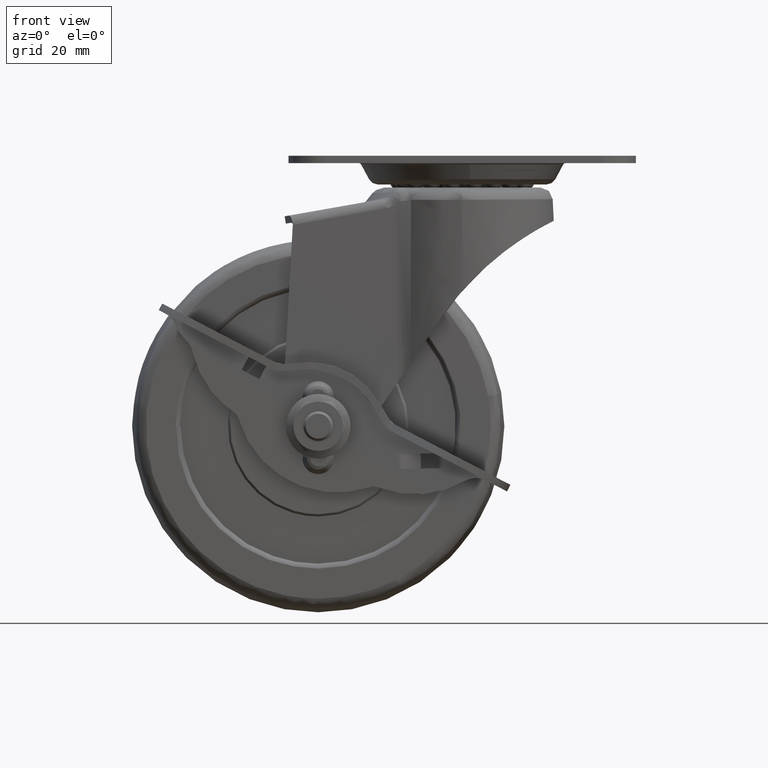
[diagram: clean part render]
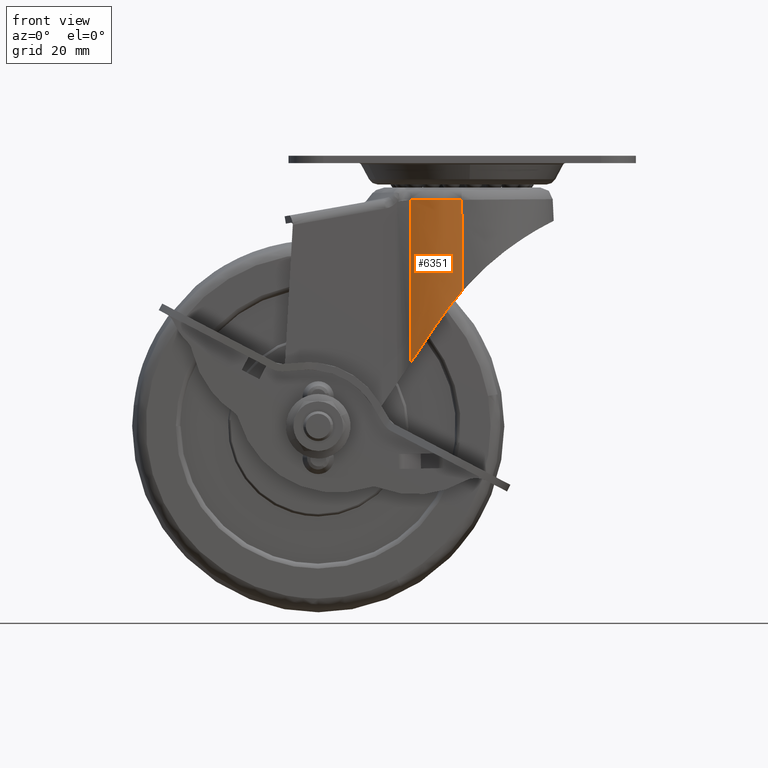
[diagram: same view with one face highlighted and labeled with its STEP entity id]
A machine part, front view. The second image highlights one B-rep face of the part: STEP entity #6351.
In plain terms, the highlighted face is a freeform B-spline surface patch.
Its self-contained STEP definition (entity closure, byte-faithful):
#4654=CARTESIAN_POINT('',(-10.324452148758301,-15.351074718211850,-7.399998799999970));
#4655=VERTEX_POINT('',#4654);
#4754=CARTESIAN_POINT('',(-0.143163841083398,-18.499436752585250,-7.399998800000080));
#4755=VERTEX_POINT('',#4754);
#4756=CARTESIAN_POINT('',(-0.143163841083398,-18.499436752585250,-7.399998800000080));
#4757=CARTESIAN_POINT('',(-5.707278229099540,-18.456379106197605,-7.399998800000024));
#4758=CARTESIAN_POINT('',(-10.324452148758301,-15.351074718211850,-7.399998799999970));
#4766=(BOUNDED_CURVE()B_SPLINE_CURVE(2,(#4756,#4757,#4758),.UNSPECIFIED.,.F.,.U.)CURVE()GEOMETRIC_REPRESENTATION_ITEM()QUASI_UNIFORM_CURVE()RATIONAL_B_SPLINE_CURVE((1.0,0.957622564361793,1.0))REPRESENTATION_ITEM(''));
#4767=EDGE_CURVE('',#4755,#4655,#4766,.T.);
#5727=CARTESIAN_POINT('',(-10.324452148758320,-15.351074718211850,-40.169434449829957));
#5728=VERTEX_POINT('',#5727);
#5742=CARTESIAN_POINT('',(-10.324452148758301,-15.351074718211850,-7.399998799999970));
#5743=CARTESIAN_POINT('',(-10.324452148758320,-15.351074718211850,-40.169434449829957));
#5744=QUASI_UNIFORM_CURVE('',1,(#5742,#5743),.UNSPECIFIED.,.F.,.U.);
#5745=EDGE_CURVE('',#4655,#5728,#5744,.T.);
#5817=CARTESIAN_POINT('',(1.005923E-012,-18.499986619467698,-12.156786014966260));
#5818=VERTEX_POINT('',#5817);
#5819=CARTESIAN_POINT('',(1.005923E-012,-18.499986619467698,-12.156786014966260));
#5820=CARTESIAN_POINT('',(-0.071582992255914,-18.499988661767244,-9.778356798499587));
#5821=CARTESIAN_POINT('',(-0.143163841083398,-18.499436752585250,-7.399998800000080));
#5829=(BOUNDED_CURVE()B_SPLINE_CURVE(2,(#5819,#5820,#5821),.UNSPECIFIED.,.F.,.U.)CURVE()GEOMETRIC_REPRESENTATION_ITEM()QUASI_UNIFORM_CURVE()RATIONAL_B_SPLINE_CURVE((1.0,0.999992514114235,1.0))REPRESENTATION_ITEM(''));
#5830=EDGE_CURVE('',#5818,#4755,#5829,.T.);
#6165=CARTESIAN_POINT('',(9.922618E-013,-18.499994788543699,-25.766931479263551));
#6166=VERTEX_POINT('',#6165);
#6180=CARTESIAN_POINT('',(-4.681181119284840,-17.897942633291049,-31.823268790685901));
#6181=VERTEX_POINT('',#6180);
#6182=CARTESIAN_POINT('',(-4.681181119284840,-17.897942633291049,-31.823268790685901));
#6183=CARTESIAN_POINT('',(-3.969290812042974,-18.084136517892521,-30.769616840080261));
#6184=CARTESIAN_POINT('',(-3.223789831007494,-18.233922761845360,-29.738324666694020));
#6185=CARTESIAN_POINT('',(-1.664108946531599,-18.441786832449999,-27.719708350576319));
#6186=CARTESIAN_POINT('',(-0.849940992225231,-18.499994788543699,-26.732387907878220));
#6187=CARTESIAN_POINT('',(9.989211E-013,-18.499994788543699,-25.766931479263551));
#6188=B_SPLINE_CURVE_WITH_KNOTS('',3,(#6182,#6183,#6184,#6185,#6186,#6187),.UNSPECIFIED.,.F.,.U.,(4,2,4),(0.0,0.500000000000000,1.0),.UNSPECIFIED.);
#6189=EDGE_CURVE('',#6181,#6166,#6188,.T.);
#6313=CARTESIAN_POINT('',(0.484273407276650,-18.493655302377341,-40.988670341075711));
#6314=CARTESIAN_POINT('',(0.484273407276650,-18.493655302377341,-6.560282011473078));
#6315=CARTESIAN_POINT('',(-5.720051051796170,-18.656121256052419,-40.988670341075711));
#6316=CARTESIAN_POINT('',(-5.720051051796170,-18.656121256052419,-6.560282011473078));
#6317=CARTESIAN_POINT('',(-10.767053929602486,-15.043947515634120,-40.988670341075711));
#6318=CARTESIAN_POINT('',(-10.767053929602486,-15.043947515634120,-6.560282011473078));
#6326=(BOUNDED_SURFACE()B_SPLINE_SURFACE(1,2,((#6313,#6315,#6317),(#6314,#6316,#6318)),.UNSPECIFIED.,.F.,.F.,.U.)B_SPLINE_SURFACE_WITH_KNOTS((2,2),(3,3),(0.0,34.428388329602633),(0.0,12.082003652498919),.UNSPECIFIED.)GEOMETRIC_REPRESENTATION_ITEM()RATIONAL_B_SPLINE_SURFACE(((1.0,0.946843488068517,0.997414615118752),(1.0,0.946843488068517,0.997414615118752)))REPRESENTATION_ITEM('')SURFACE());
#6327=ORIENTED_EDGE('',*,*,#5830,.T.);
#6328=ORIENTED_EDGE('',*,*,#4767,.T.);
#6329=ORIENTED_EDGE('',*,*,#5745,.T.);
#6330=CARTESIAN_POINT('',(-10.324452148758320,-15.351074718211850,-40.169434449829950));
#6331=CARTESIAN_POINT('',(-7.718953336185503,-17.103417684932214,-36.316008909773160));
#6332=CARTESIAN_POINT('',(-4.681181119284840,-17.897942633291049,-31.823268790685901));
#6340=(BOUNDED_CURVE()B_SPLINE_CURVE(2,(#6330,#6331,#6332),.UNSPECIFIED.,.F.,.U.)CURVE()GEOMETRIC_REPRESENTATION_ITEM()QUASI_UNIFORM_CURVE()RATIONAL_B_SPLINE_CURVE((1.0,0.985900208722441,1.0))REPRESENTATION_ITEM(''));
#6341=EDGE_CURVE('',#5728,#6181,#6340,.T.);
#6342=ORIENTED_EDGE('',*,*,#6341,.T.);
#6343=ORIENTED_EDGE('',*,*,#6189,.T.);
#6344=CARTESIAN_POINT('',(9.922618E-013,-18.499994788543699,-25.766931479263551));
#6345=CARTESIAN_POINT('',(1.005923E-012,-18.499986619467698,-12.156786014966260));
#6346=QUASI_UNIFORM_CURVE('',1,(#6344,#6345),.UNSPECIFIED.,.F.,.U.);
#6347=EDGE_CURVE('',#6166,#5818,#6346,.T.);
#6348=ORIENTED_EDGE('',*,*,#6347,.T.);
#6349=EDGE_LOOP('',(#6327,#6328,#6329,#6342,#6343,#6348));
#6350=FACE_OUTER_BOUND('',#6349,.T.);
#6351=ADVANCED_FACE('',(#6350),#6326,.T.);